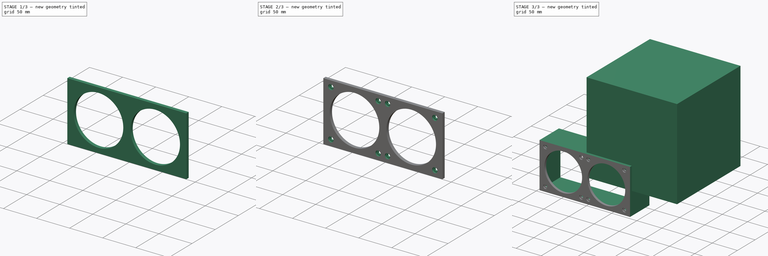
[diagram: build sequence overview — one tinted view per stage of 3, left to right]
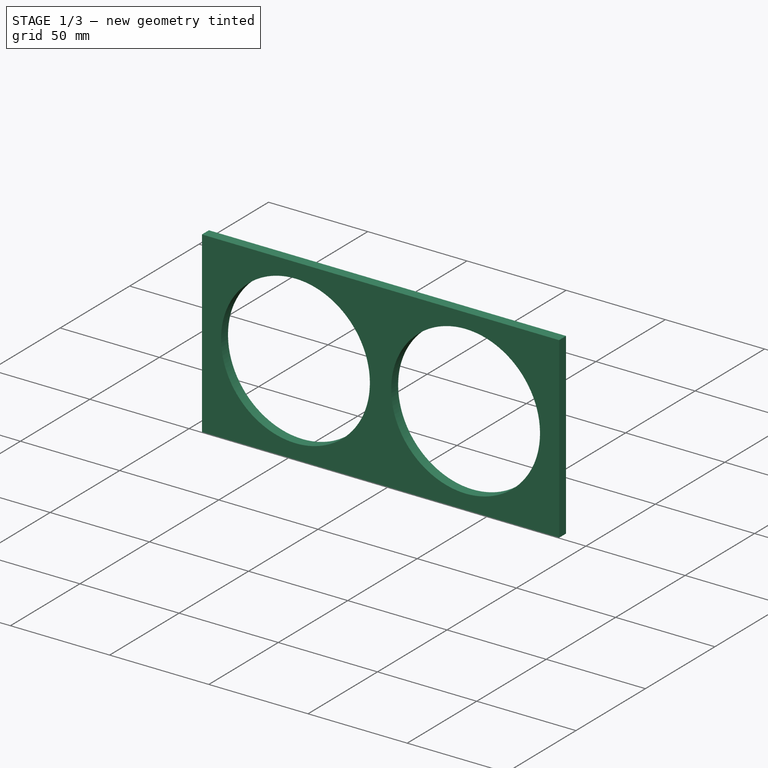
[diagram: stage 1 of 3 — iso view after this stage's code; geometry added in this stage tinted green]
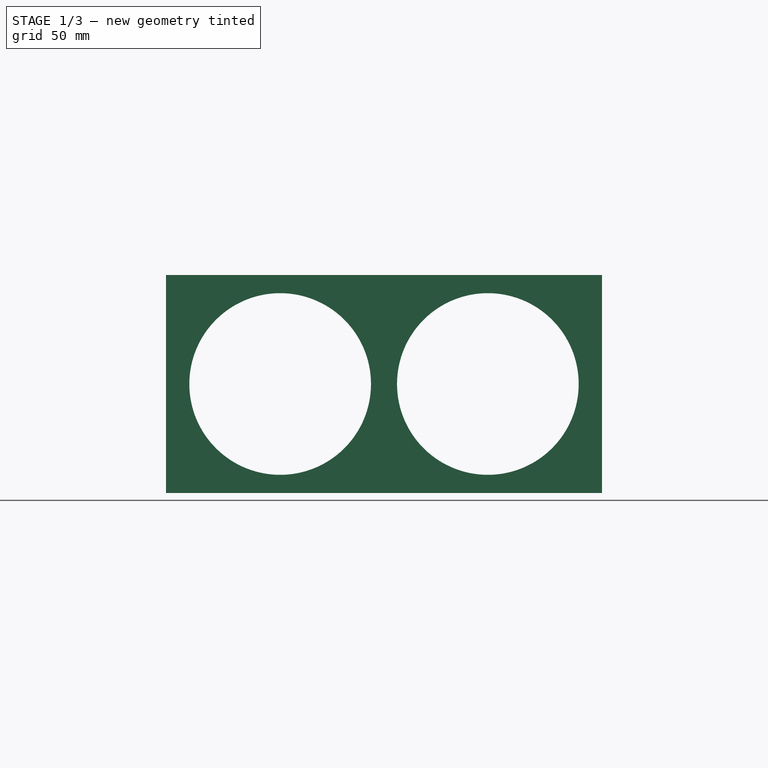
[diagram: stage 1 of 3 — front view after this stage's code; geometry added in this stage tinted green]
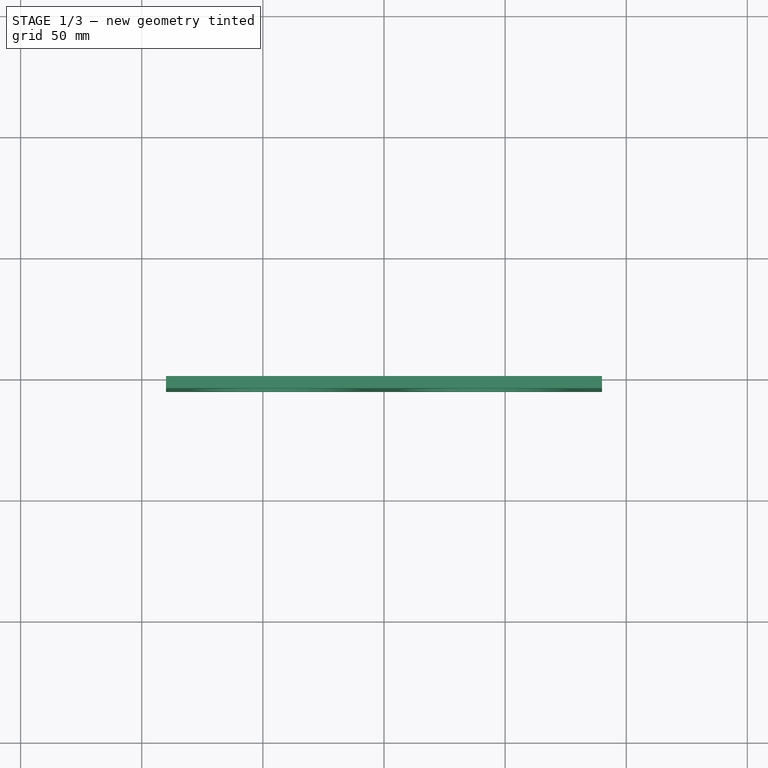
[diagram: stage 1 of 3 — top view after this stage's code; geometry added in this stage tinted green]
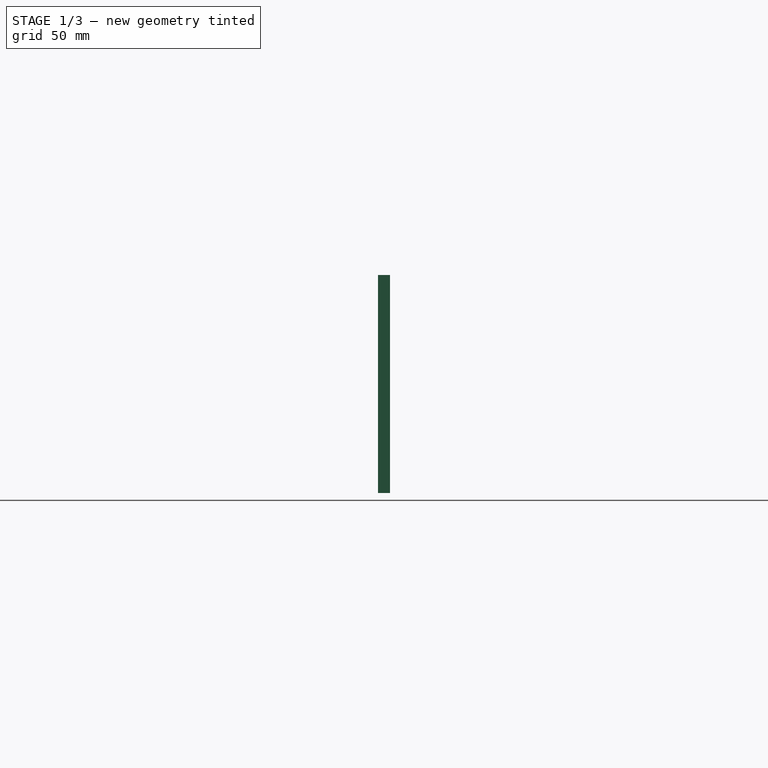
[diagram: stage 1 of 3 — right view after this stage's code; geometry added in this stage tinted green]
FCSTD DOCUMENT  (FreeCAD 0.18.4R)
Label: fan-array-tryout
License: CreativeCommons Attribution-ShareAlike
LicenseURL: http://creativecommons.org/licenses/by-sa/4.0/
objects: Part::Feature×4, App::Part×4, Sketcher::SketchObject×4, PartDesign::Pad×2, Part::Box×1, PartDesign::Pocket×1, PartDesign::Hole×1, PartDesign::Body×1
note: 18 computed .brp shape members not serialized (recipe doc carries the construction recipe); baked Part::Feature solids carry a one-line shape summary decoded from their .brp

FEATURE [Sketcher::SketchObject] Sketch
  MapMode = 5
  Placement = pos=(0,0,0) rot=(1,0,0;1.5708rad)
  Support = -> [XZ_Plane006]
  sketch-geometry (4):
    g0: LineSegment StartX=-90 StartY=45 StartZ=0 EndX=90 EndY=45 EndZ=0
    g1: LineSegment StartX=90 StartY=45 StartZ=0 EndX=90 EndY=-45 EndZ=0
    g2: LineSegment StartX=90 StartY=-45 StartZ=0 EndX=-90 EndY=-45 EndZ=0
    g3: LineSegment StartX=-90 StartY=-45 StartZ=0 EndX=-90 EndY=45 EndZ=0
  constraints (10):
    c: Coincident(g0,g1)
    c: Coincident(g1,g2)
    c: Coincident(g2,g3)
    c: Coincident(g3,g0)
    c: Horizontal(g2)
    c: Vertical(g1)
    c: Symmetric(g0,g2,g-1)
    c: Symmetric(g0,g0,g-2)
    c: DistanceX(g0,g0) = 180
    c: DistanceY(g3,g3) = 90
FEATURE [PartDesign::Pad] Pad
  Length = 5
  Length2 = 100
  Placement = pos=(0,0,0) rot=(1,0,0;1.5708rad)
  Profile = -> Sketch
  Refine = true
  Type = 0
FEATURE [Sketcher::SketchObject] Sketch001
  ExternalGeometry = -> [Pad]
  MapMode = 5
  Placement = pos=(0,-5,3.3e-15) rot=(1,0,0;1.5708rad)
  Support = -> [Pad]
  sketch-geometry (20):
    g0: LineSegment [constr] StartX=-85 StartY=40 StartZ=0 EndX=85 EndY=40 EndZ=0
    g1: LineSegment [constr] StartX=85 StartY=40 StartZ=0 EndX=85 EndY=-40 EndZ=0
    g2: LineSegment [constr] StartX=85 StartY=-40 StartZ=0 EndX=-85 EndY=-40 EndZ=0
    g3: LineSegment [constr] StartX=-85 StartY=-40 StartZ=0 EndX=-85 EndY=40 EndZ=0
    g4: LineSegment [constr] StartX=-78.6222 StartY=35.75 StartZ=0 EndX=-7.1222 EndY=35.75 EndZ=0
    g5: LineSegment [constr] StartX=-7.1222 StartY=35.75 StartZ=0 EndX=-7.1222 EndY=-35.75 EndZ=0
    g6: LineSegment [constr] StartX=-7.1222 StartY=-35.75 StartZ=0 EndX=-78.6222 EndY=-35.75 EndZ=0
    g7: LineSegment [constr] StartX=-78.6222 StartY=-35.75 StartZ=0 EndX=-78.6222 EndY=35.75 EndZ=0
    g8: Circle [constr] CenterX=-78.6222 CenterY=35.75 CenterZ=0 NormalX=0 NormalY=0 NormalZ=1 AngleXU=0 Radius=2.2
    g9: Circle [constr] CenterX=-7.1222 CenterY=35.75 CenterZ=0 NormalX=0 NormalY=0 NormalZ=1 AngleXU=0 Radius=2.2
    g10: Circle [constr] CenterX=-78.6222 CenterY=-35.75 CenterZ=0 NormalX=0 NormalY=0 NormalZ=1 AngleXU=0 Radius=2.2
    g11: Circle [constr] CenterX=-7.1222 CenterY=-35.75 CenterZ=0 NormalX=0 NormalY=0 NormalZ=1 AngleXU=0 Radius=2.2
    g12: Circle CenterX=-42.8722 CenterY=0 CenterZ=0 NormalX=0 NormalY=0 NormalZ=1 AngleXU=0 Radius=37.5
    g13: LineSegment [constr] StartX=-42.8722 StartY=35.75 StartZ=0 EndX=-42.8722 EndY=-35.75 EndZ=0
    g14: GeomPoint X=-42.8722 Y=0 Z=0
    g15: Circle CenterX=42.8722 CenterY=0 CenterZ=0 NormalX=0 NormalY=0 NormalZ=1 AngleXU=0 Radius=37.5
    g16: Circle [constr] CenterX=7.1222 CenterY=35.75 CenterZ=0 NormalX=0 NormalY=0 NormalZ=1 AngleXU=0 Radius=2.2
    g17: Circle [constr] CenterX=78.6222 CenterY=35.75 CenterZ=0 NormalX=0 NormalY=0 NormalZ=1 AngleXU=0 Radius=2.2
    g18: Circle [constr] CenterX=78.6222 CenterY=-35.75 CenterZ=0 NormalX=0 NormalY=0 NormalZ=1 AngleXU=0 Radius=2.2
    g19: Circle [constr] CenterX=7.1222 CenterY=-35.75 CenterZ=0 NormalX=0 NormalY=0 NormalZ=1 AngleXU=0 Radius=2.2
  constraints (45):
    c: Coincident(g0,g1)
    c: Coincident(g1,g2)
    c: Coincident(g2,g3)
    c: Coincident(g3,g0)
    c: Horizontal(g2)
    c: Vertical(g1)
    c: Symmetric(g0,g0,g-2)
    c: Symmetric(g0,g2,g-1)
    c: DistanceX(g0,g-6) = 5
    c: DistanceY(g0,g-6) = 5
    c: Coincident(g4,g5)
    c: Coincident(g5,g6)
    c: Coincident(g6,g7)
    c: Coincident(g7,g4)
    c: Horizontal(g4)
    c: Horizontal(g6)
    c: Vertical(g5)
    c: Equal(g7,g4)
    c: DistanceX(g4,g4) = 71.5
    c: Symmetric(g6,g4,g-1)
    c: Diameter(g11) = 4.4
    c: Equal(g11,g10)
    c: Equal(g11,g8)
    c: Equal(g11,g9)
    c: Coincident(g8,g4)
    c: Coincident(g6,g10)
    c: Coincident(g5,g11)
    c: Coincident(g4,g9)
    c: Symmetric(g9,g8,g13)
    c: PointOnObject(g13,g4)
    c: PointOnObject(g13,g6)
    c: PointOnObject(g14,g-1)
    c: PointOnObject(g14,g13)
    c: Coincident(g12,g14)
    c: Diameter(g12) = 75
    c: Equal(g12,g15)
    c: Symmetric(g15,g12,g-2)
    c: Equal(g19,g18)
    c: Equal(g18,g17)
    c: Equal(g17,g16)
    c: Equal(g16,g9)
    c: Symmetric(g5,g19,g-2)
    c: Symmetric(g18,g6,g-2)
    c: Symmetric(g17,g4,g-2)
    c: Symmetric(g4,g16,g-2)
FEATURE [PartDesign::Pocket] Pocket
  BaseFeature = -> Pad
  Length = 5
  Length2 = 100
  Placement = pos=(0,0,0) rot=(1,0,0;1.5708rad)
  Profile = -> Sketch001
  Refine = true
  Type = 0
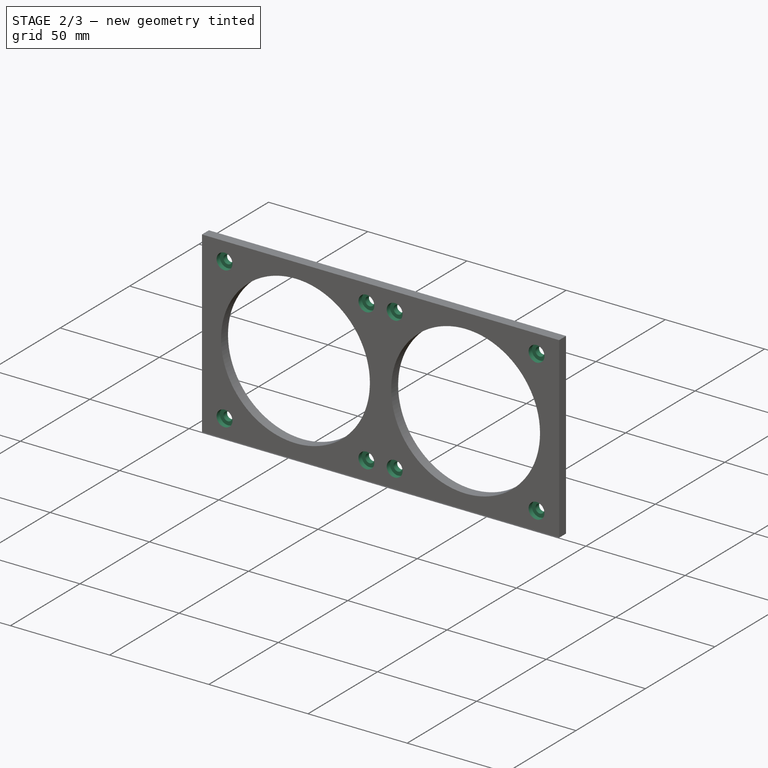
[diagram: stage 2 of 3 — iso view after this stage's code; geometry added in this stage tinted green]
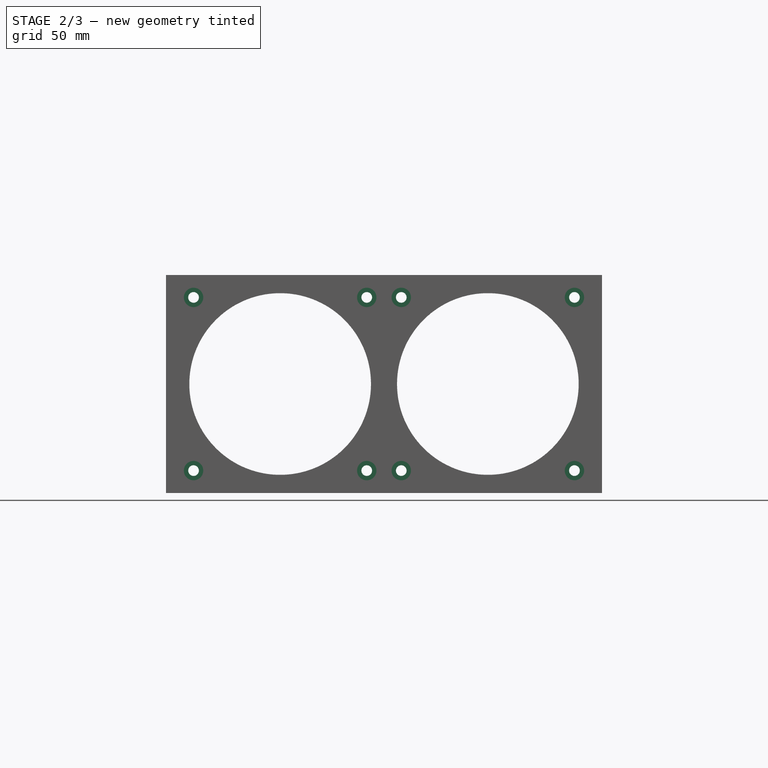
[diagram: stage 2 of 3 — front view after this stage's code; geometry added in this stage tinted green]
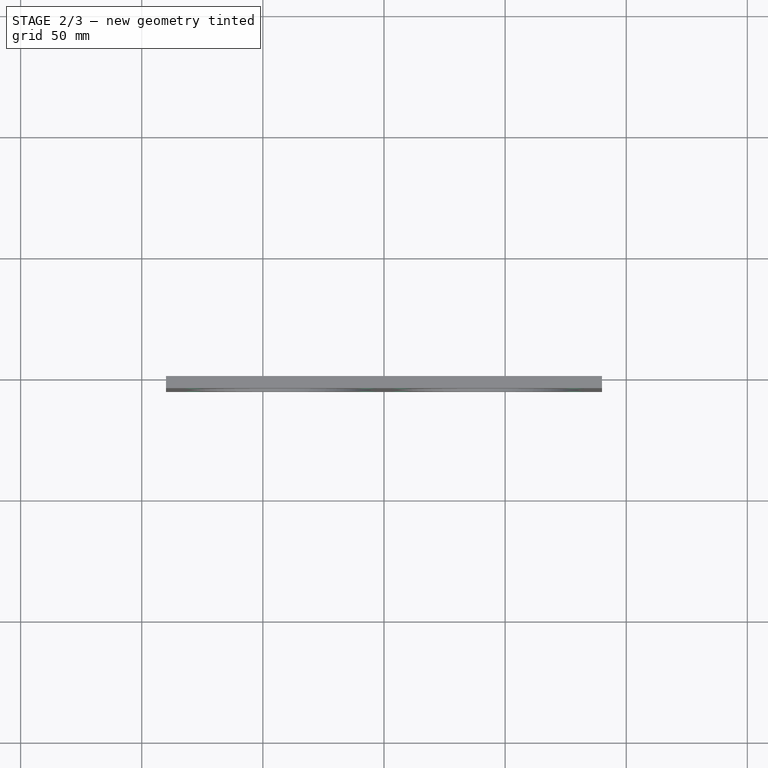
[diagram: stage 2 of 3 — top view after this stage's code; geometry added in this stage tinted green]
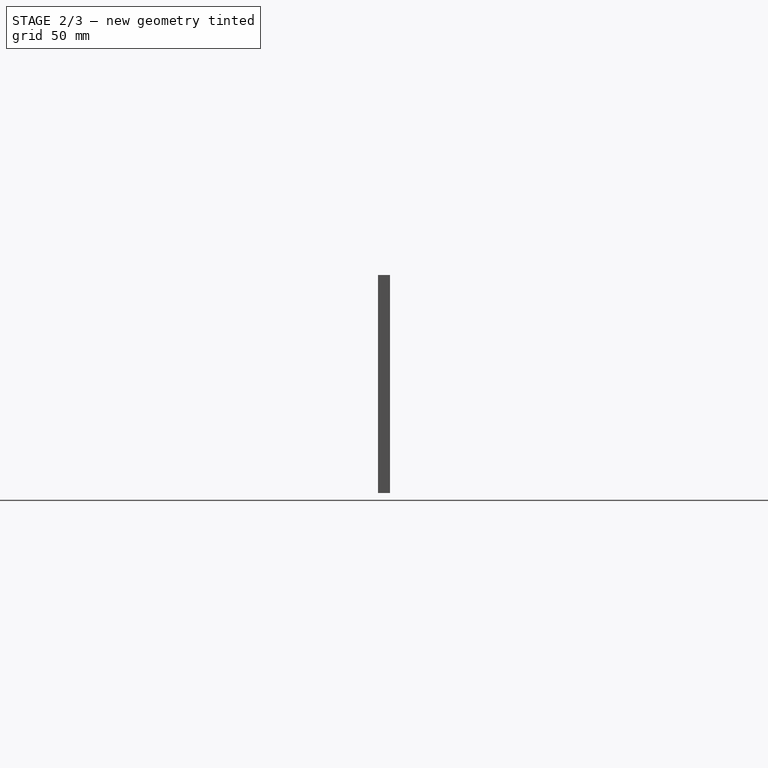
[diagram: stage 2 of 3 — right view after this stage's code; geometry added in this stage tinted green]
FEATURE [Sketcher::SketchObject] Sketch002
  ExternalGeometry = -> [Pad]
  MapMode = 5
  Placement = pos=(0,-5,3.3e-15) rot=(1,0,0;1.5708rad)
  Support = -> [Pad]
  expr: Constraints[20] = Sketch001.Constraints[20]
  expr: Constraints[34] = Sketch001.Constraints[34]
  expr: Constraints[18] = Sketch001.Constraints[18]
  expr: Constraints[9] = Sketch001.Constraints[9]
  expr: Constraints[8] = Sketch001.Constraints[8]
  sketch-geometry (20):
    g0: LineSegment [constr] StartX=-85 StartY=40 StartZ=0 EndX=85 EndY=40 EndZ=0
    g1: LineSegment [constr] StartX=85 StartY=40 StartZ=0 EndX=85 EndY=-40 EndZ=0
    g2: LineSegment [constr] StartX=85 StartY=-40 StartZ=0 EndX=-85 EndY=-40 EndZ=0
    g3: LineSegment [constr] StartX=-85 StartY=-40 StartZ=0 EndX=-85 EndY=40 EndZ=0
    g4: LineSegment [constr] StartX=-78.6222 StartY=35.75 StartZ=0 EndX=-7.1222 EndY=35.75 EndZ=0
    g5: LineSegment [constr] StartX=-7.1222 StartY=35.75 StartZ=0 EndX=-7.1222 EndY=-35.75 EndZ=0
    g6: LineSegment [constr] StartX=-7.1222 StartY=-35.75 StartZ=0 EndX=-78.6222 EndY=-35.75 EndZ=0
    g7: LineSegment [constr] StartX=-78.6222 StartY=-35.75 StartZ=0 EndX=-78.6222 EndY=35.75 EndZ=0
    g8: Circle CenterX=-78.6222 CenterY=35.75 CenterZ=0 NormalX=0 NormalY=0 NormalZ=1 AngleXU=0 Radius=2.2
    g9: Circle CenterX=-7.1222 CenterY=35.75 CenterZ=0 NormalX=0 NormalY=0 NormalZ=1 AngleXU=0 Radius=2.2
    g10: Circle CenterX=-78.6222 CenterY=-35.75 CenterZ=0 NormalX=0 NormalY=0 NormalZ=1 AngleXU=0 Radius=2.2
    g11: Circle CenterX=-7.1222 CenterY=-35.75 CenterZ=0 NormalX=0 NormalY=0 NormalZ=1 AngleXU=0 Radius=2.2
    g12: Circle [constr] CenterX=-42.8722 CenterY=0 CenterZ=0 NormalX=0 NormalY=0 NormalZ=1 AngleXU=0 Radius=37.5
    g13: LineSegment [constr] StartX=-42.8722 StartY=35.75 StartZ=0 EndX=-42.8722 EndY=-35.75 EndZ=0
    g14: GeomPoint X=-42.8722 Y=0 Z=0
    g15: Circle [constr] CenterX=42.8722 CenterY=0 CenterZ=0 NormalX=0 NormalY=0 NormalZ=1 AngleXU=0 Radius=37.5
    g16: Circle CenterX=7.1222 CenterY=35.75 CenterZ=0 NormalX=0 NormalY=0 NormalZ=1 AngleXU=0 Radius=2.2
    g17: Circle CenterX=78.6222 CenterY=35.75 CenterZ=0 NormalX=0 NormalY=0 NormalZ=1 AngleXU=0 Radius=2.2
    g18: Circle CenterX=78.6222 CenterY=-35.75 CenterZ=0 NormalX=0 NormalY=0 NormalZ=1 AngleXU=0 Radius=2.2
    g19: Circle CenterX=7.1222 CenterY=-35.75 CenterZ=0 NormalX=0 NormalY=0 NormalZ=1 AngleXU=0 Radius=2.2
  constraints (45):
    c: Coincident(g0,g1)
    c: Coincident(g1,g2)
    c: Coincident(g2,g3)
    c: Coincident(g3,g0)
    c: Horizontal(g2)
    c: Vertical(g1)
    c: Symmetric(g0,g0,g-2)
    c: Symmetric(g0,g2,g-1)
    c: DistanceX(g0,g-6) = 5
    c: DistanceY(g0,g-6) = 5
    c: Coincident(g4,g5)
    c: Coincident(g5,g6)
    c: Coincident(g6,g7)
    c: Coincident(g7,g4)
    c: Horizontal(g4)
    c: Horizontal(g6)
    c: Vertical(g5)
    c: Equal(g7,g4)
    c: DistanceX(g4,g4) = 71.5
    c: Symmetric(g6,g4,g-1)
    c: Diameter(g11) = 4.4
    c: Equal(g11,g10)
    c: Equal(g11,g8)
    c: Equal(g11,g9)
    c: Coincident(g8,g4)
    c: Coincident(g6,g10)
    c: Coincident(g5,g11)
    c: Coincident(g4,g9)
    c: Symmetric(g9,g8,g13)
    c: PointOnObject(g13,g4)
    c: PointOnObject(g13,g6)
    c: PointOnObject(g14,g-1)
    c: PointOnObject(g14,g13)
    c: Coincident(g12,g14)
    c: Diameter(g12) = 75
    c: Equal(g12,g15)
    c: Symmetric(g15,g12,g-2)
    c: Equal(g19,g18)
    c: Equal(g18,g17)
    c: Equal(g17,g16)
    c: Equal(g16,g9)
    c: Symmetric(g5,g19,g-2)
    c: Symmetric(g18,g6,g-2)
    c: Symmetric(g17,g4,g-2)
    c: Symmetric(g4,g16,g-2)
FEATURE [PartDesign::Hole] Hole
  BaseFeature = -> Pocket
  Depth = 25
  DepthType = 0
  Diameter = 4.4
  DrillPoint = 1
  DrillPointAngle = 118
  HoleCutCountersinkAngle = 90
  HoleCutDepth = 2.4
  HoleCutDiameter = 8
  HoleCutType = 1
  ModelActualThread = false
  Placement = pos=(0,0,0) rot=(1,0,0;1.5708rad)
  Profile = -> Sketch002
  Refine = true
  Tapered = false
  TaperedAngle = 90
  ThreadAngle = 0
  ThreadClass = 0
  ThreadCutOffInner = 0
  ThreadCutOffOuter = 0
  ThreadDirection = 0
  ThreadFit = 0
  ThreadPitch = 0
  ThreadSize = 11
  ThreadType = 2
  Threaded = false
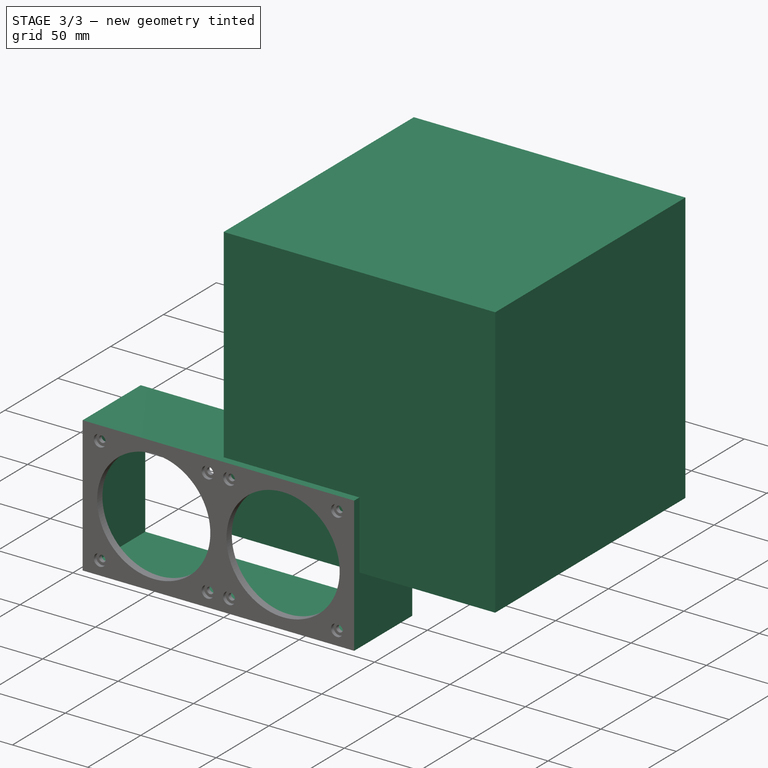
[diagram: stage 3 of 3 — iso view after this stage's code; geometry added in this stage tinted green]
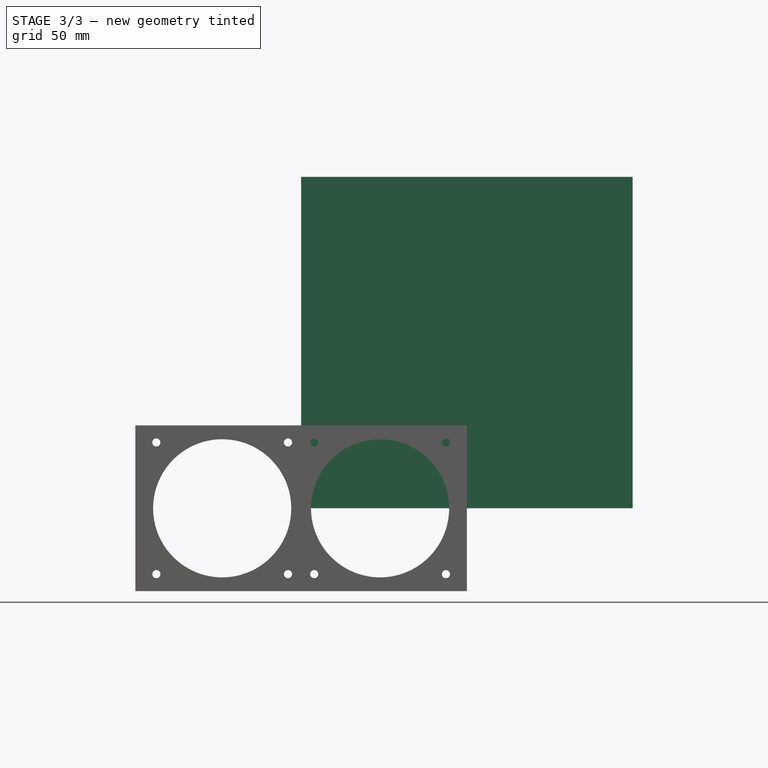
[diagram: stage 3 of 3 — front view after this stage's code; geometry added in this stage tinted green]
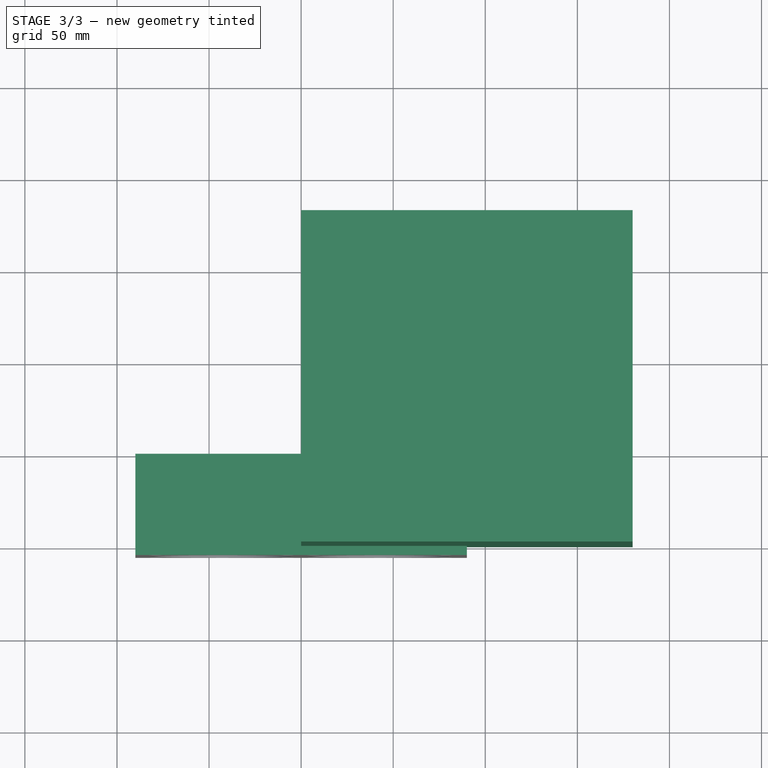
[diagram: stage 3 of 3 — top view after this stage's code; geometry added in this stage tinted green]
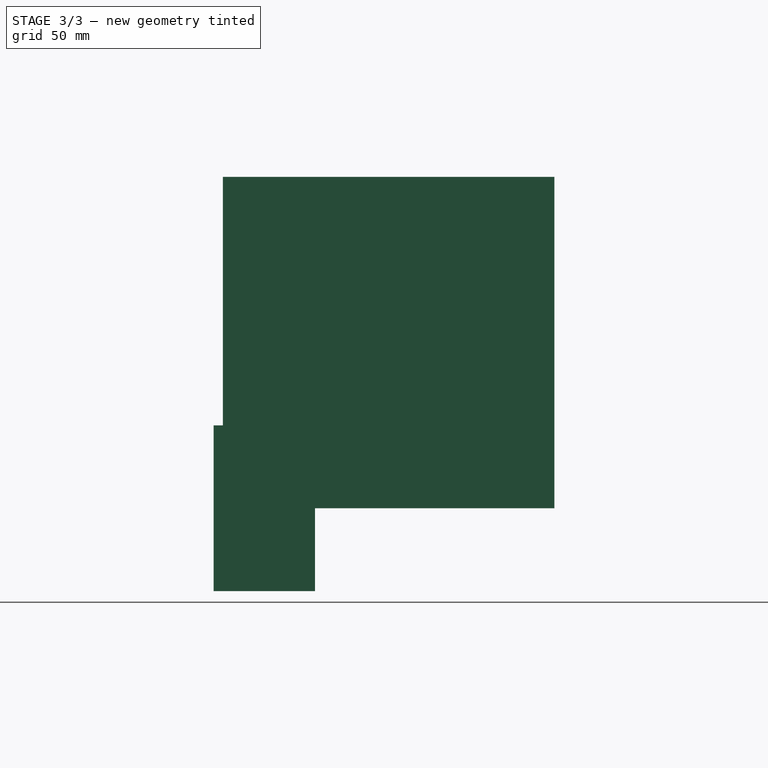
[diagram: stage 3 of 3 — right view after this stage's code; geometry added in this stage tinted green]
FEATURE [Part::Feature] Part__Feature  label="80MM_FAN_PROP"
  shape: bbox 75.74 x 17 x 74.31 mm, 42 faces (baked)
FEATURE [Part::Feature] Part__Feature001  label="80MM_FAN_HOUSING"
  shape: bbox 86.79 x 25.34 x 87.23 mm, 365 faces (baked)
FEATURE [App::Part] Part  label="Fan001"
  Group = -> [Part__Feature,Part__Feature001]
  Origin = -> Origin
  Placement = pos=(-43,0,0) rot=(0,0,1;0rad)
FEATURE [Part::Feature] Part__Feature002  label="80MM_FAN_HOUSING001"
  shape: bbox 86.79 x 25.34 x 87.23 mm, 365 faces (baked)
FEATURE [Part::Feature] Part__Feature003  label="80MM_FAN_PROP001"
  shape: bbox 75.74 x 17 x 74.31 mm, 42 faces (baked)
FEATURE [App::Part] Part001  label="Fan002"
  Group = -> [Part__Feature003,Part__Feature002]
  Origin = -> Origin001
  Placement = pos=(43,0,0) rot=(0,0,1;0rad)
FEATURE [Part::Box] Box  label="Cube"
  AttacherType = Attacher::AttachEngine3D
  Height = 180
  Length = 180
  Width = 180
FEATURE [Sketcher::SketchObject] Sketch003
  ExternalGeometry = -> [Pad]
  MapMode = 5
  Placement = pos=(0,0,0) rot=(-1,0,0;1.5708rad)
  Support = -> [Pad]
  sketch-geometry (8):
    g0: LineSegment StartX=-90 StartY=45 StartZ=0 EndX=90 EndY=45 EndZ=0
    g1: LineSegment StartX=90 StartY=45 StartZ=0 EndX=90 EndY=-45 EndZ=0
    g2: LineSegment StartX=90 StartY=-45 StartZ=0 EndX=-90 EndY=-45 EndZ=0
    g3: LineSegment StartX=-90 StartY=-45 StartZ=0 EndX=-90 EndY=45 EndZ=0
    g4: LineSegment StartX=-87 StartY=42 StartZ=0 EndX=87 EndY=42 EndZ=0
    g5: LineSegment StartX=87 StartY=42 StartZ=0 EndX=87 EndY=-42 EndZ=0
    g6: LineSegment StartX=87 StartY=-42 StartZ=0 EndX=-87 EndY=-42 EndZ=0
    g7: LineSegment StartX=-87 StartY=-42 StartZ=0 EndX=-87 EndY=42 EndZ=0
  constraints (20):
    c: Coincident(g0,g1)
    c: Coincident(g1,g2)
    c: Coincident(g2,g3)
    c: Coincident(g3,g0)
    c: Horizontal(g0)
    c: Horizontal(g2)
    c: Vertical(g1)
    c: Vertical(g3)
    c: Coincident(g1,g-5)
    c: Coincident(g-6,g0)
    c: Coincident(g4,g5)
    c: Coincident(g5,g6)
    c: Coincident(g6,g7)
    c: Coincident(g7,g4)
    c: Horizontal(g6)
    c: Vertical(g5)
    c: Symmetric(g4,g4,g-2)
    c: Symmetric(g6,g4,g-1)
    c: DistanceX(g0,g4) = 3
    c: DistanceY(g4,g0) = 3
FEATURE [PartDesign::Pad] Pad001
  BaseFeature = -> Hole
  Length = 50
  Length2 = 100
  Placement = pos=(0,0,0) rot=(1,0,0;1.5708rad)
  Profile = -> Sketch003
  Refine = true
  Type = 0
FEATURE [PartDesign::Body] Body
  Group = -> [Sketch,Pad,Sketch001,Pocket,Sketch002,Hole,Sketch003,Pad001]
  Origin = -> Origin006
  Tip = -> Pad001
FEATURE [App::Part] Part005
  Group = -> [Body]
  Origin = -> Origin005
FEATURE [App::Part] Part004  label="fan-array-main"
  Group = -> [Part001,Part,Part005]
  Origin = -> Origin004
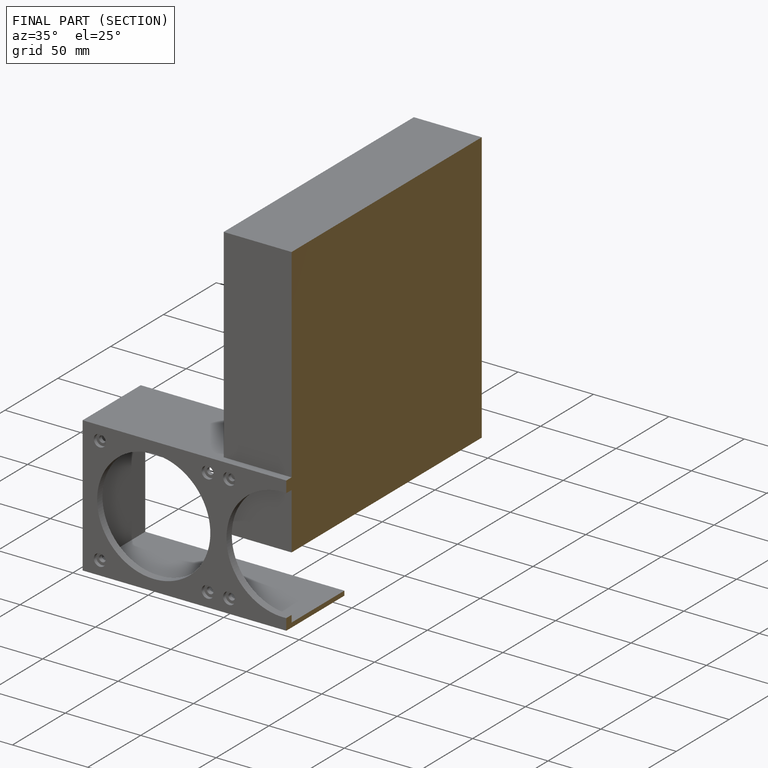
[diagram: finished part — half-section view (interior)]
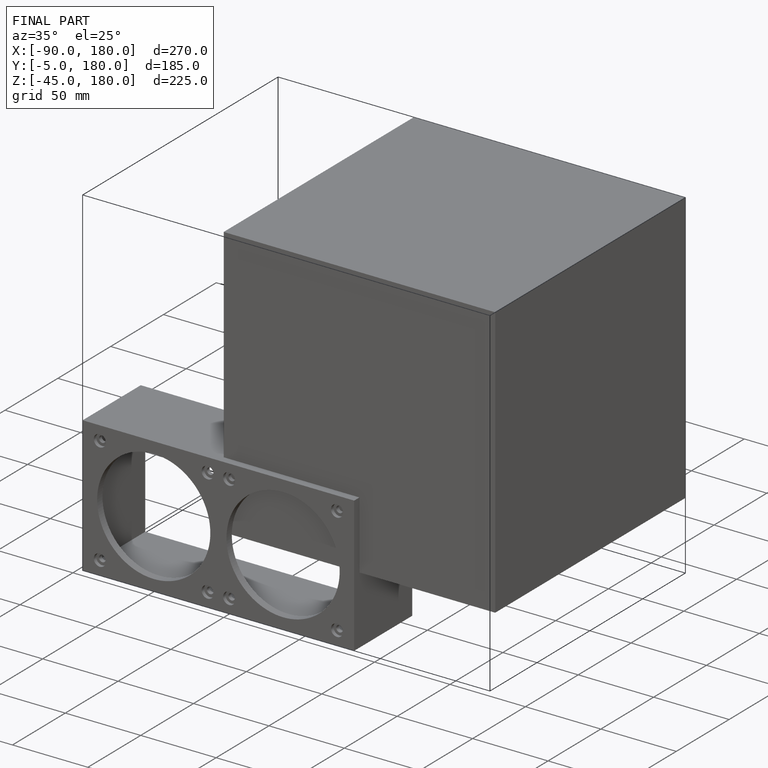
[diagram: finished part — iso view with bounding-box wireframe]
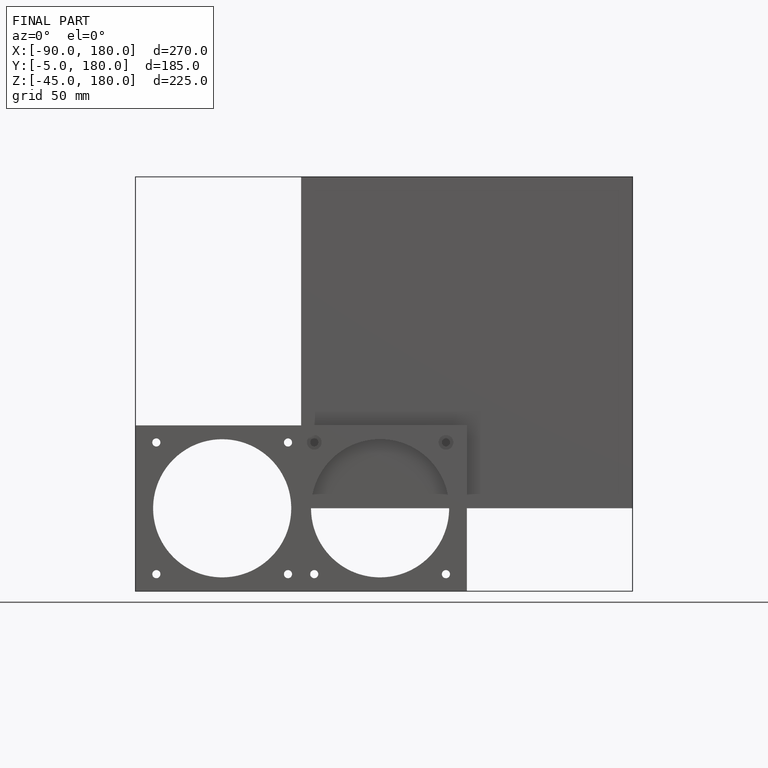
[diagram: finished part — front view with bounding-box wireframe]
